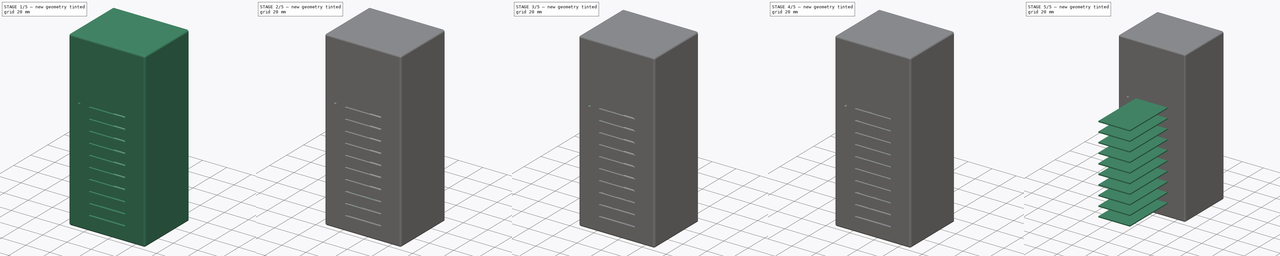
[diagram: build sequence overview — one tinted view per stage of 5, left to right]
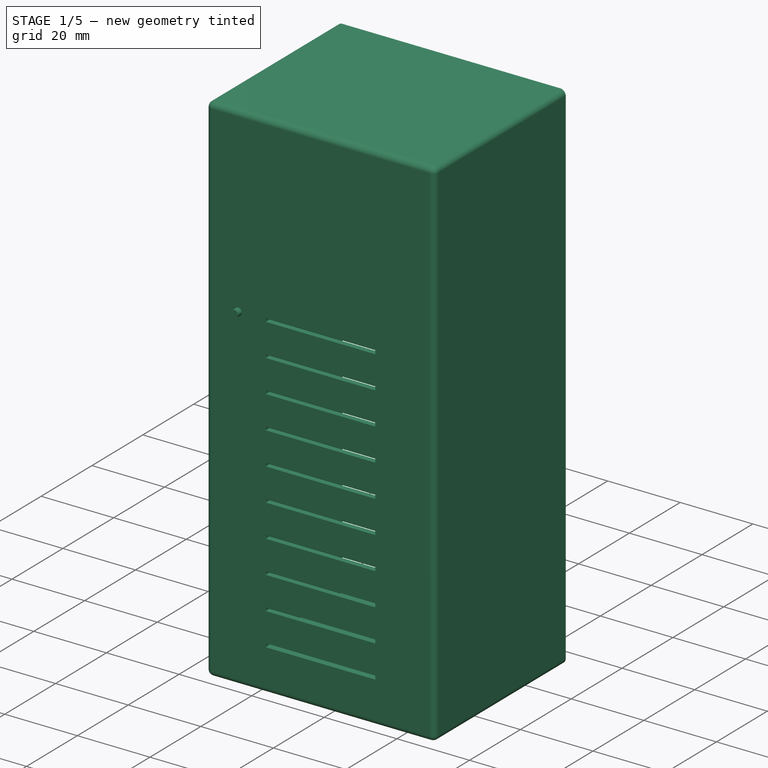
[diagram: stage 1 of 5 — iso view after this stage's code; geometry added in this stage tinted green]
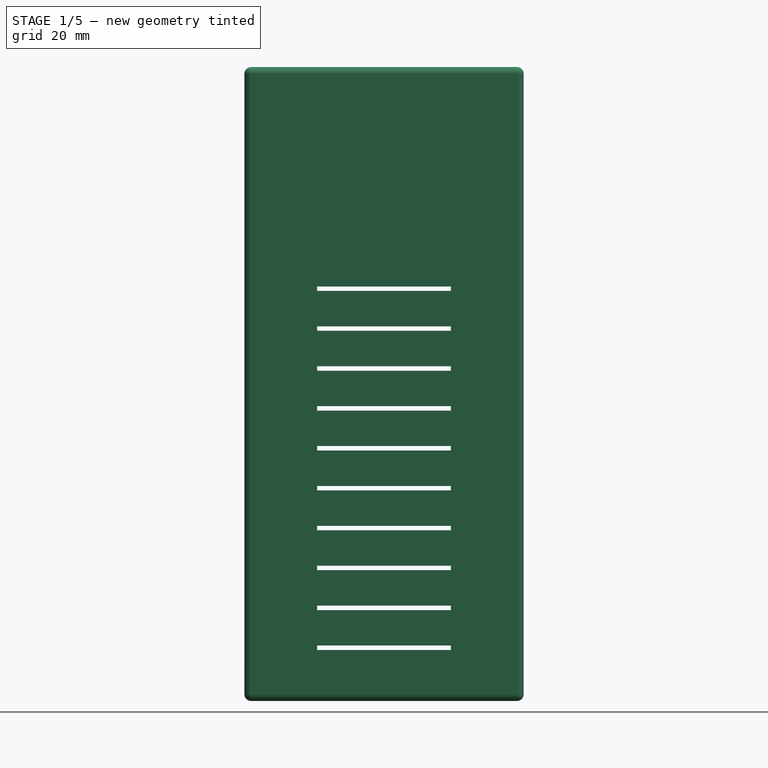
[diagram: stage 1 of 5 — front view after this stage's code; geometry added in this stage tinted green]
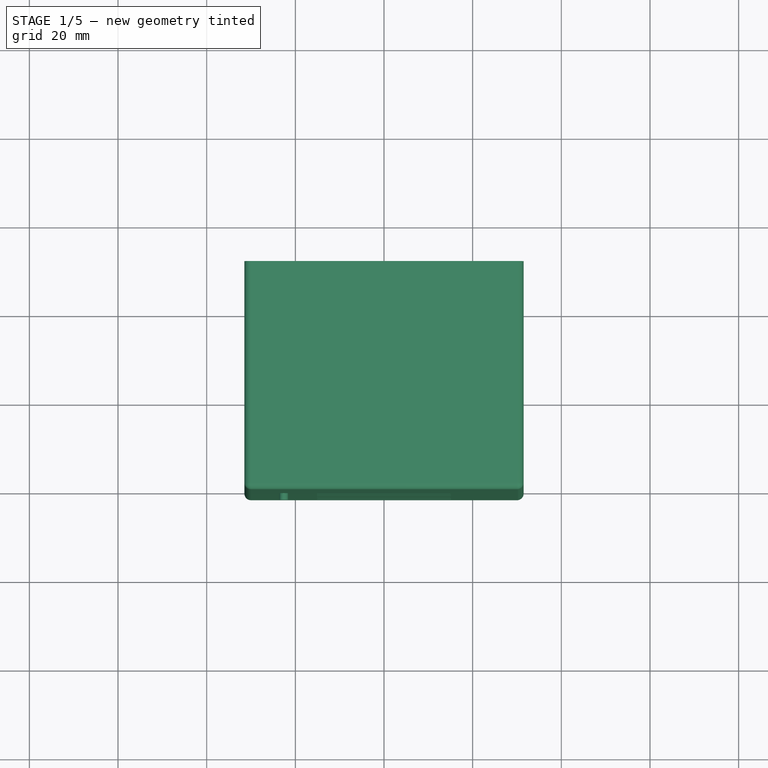
[diagram: stage 1 of 5 — top view after this stage's code; geometry added in this stage tinted green]
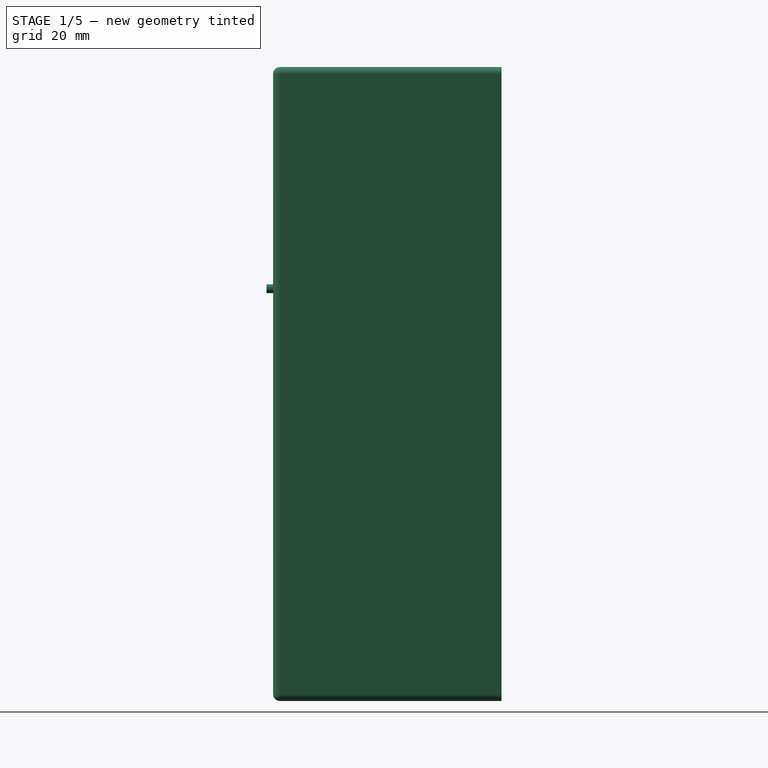
[diagram: stage 1 of 5 — right view after this stage's code; geometry added in this stage tinted green]
FCSTD DOCUMENT  (FreeCAD 0.16R6712 (Git))
Label: VU led directores
License: CreativeCommons Attribution-ShareAlike
LicenseURL: http://creativecommons.org/licenses/by-sa/4.0/
objects: Part::Feature×20, Part::MultiFuse×15, Sketcher::SketchObject×11, Part::FeaturePython×10, Part::MultiCommon×10, Part::Box×9, App::DocumentObjectGroup×8, PartDesign::Pocket×7, Part::Cut×7, Part::Cylinder×5, PartDesign::Pad×4, PartDesign::LinearPattern×3, App::Annotation×3, Part::Part2DObjectPython×3, Part::Chamfer×3, App::FeaturePython×2, Part::Thickness×1, Part::Compound×1, Part::Offset×1, Part::Fillet×1, +3 more types
note: 122 computed .brp shape members not serialized (recipe doc carries the construction recipe); baked Part::Feature solids carry a one-line shape summary decoded from their .brp

FEATURE [Part::Box] Box  label="Cube"
  Height = 140
  Length = 60
  Placement = pos=(-30,0,-10) rot=(0,0,1;0rad)
  Width = 50
FEATURE [Part::Thickness] Thickness
  Faces = -> Box [Face4]
  Intersection = false
  Join = 0
  Mode = 0
  SelfIntersection = false
  Value = 1.5
FEATURE [Sketcher::SketchObject] Sketch002
  Placement = pos=(0,0,0) rot=(0,0.707107,0.707107;3.14159rad)
  Support = -> Thickness [Face5]
  sketch-geometry (4):
    g0: LineSegment StartX=-15.1 StartY=1 StartZ=0 EndX=15.1 EndY=1 EndZ=0
    g1: LineSegment StartX=15.1 StartY=1 StartZ=0 EndX=15.1 EndY=0 EndZ=0
    g2: LineSegment StartX=15.1 StartY=0 StartZ=0 EndX=-15.1 EndY=0 EndZ=0
    g3: LineSegment StartX=-15.1 StartY=0 StartZ=0 EndX=-15.1 EndY=1 EndZ=0
  constraints (12):
    c: Coincident(g0,g1)
    c: Coincident(g1,g2)
    c: Coincident(g2,g3)
    c: Coincident(g3,g0)
    c: Horizontal(g0)
    c: Horizontal(g2)
    c: Vertical(g1)
    c: Vertical(g3)
    c: PointOnObject(g1,g-1)
    c: Symmetric(g2,g1,g-2)
    c: DistanceY(g1,g0) = 1
    c: DistanceX(g0,g0) = 30.2
FEATURE [PartDesign::Pocket] Pocket
  Length = 5
  Sketch = -> Sketch002
  Type = 0
FEATURE [PartDesign::LinearPattern] LinearPattern
  Direction = -> Sketch002 [V_Axis]
  Length = 81
  Occurrences = 10
  Originals = -> [Pocket]
FEATURE [Part::MultiCommon] Common
  Shapes = -> [Thickness,Pocket]
FEATURE [Part::MultiCommon] Common001
  Shapes = -> [Common,LinearPattern]
FEATURE [App::Annotation] Text002
  LabelText = 1
  Position = (70,0,35.9)
FEATURE [App::FeaturePython] Dimension  # Draft dimension (typed FeaturePython)
  Dimline = (-4.42051,55.6303,0)
  Direction = (0,0,0)
  Distance = 29.7
  End = (14.85,50,0)
  Normal = (0,0,1)
  Start = (-14.85,50,0)
FEATURE [App::FeaturePython] Dimension003  # Draft dimension (typed FeaturePython)
  Dimline = (19.9166,15.1512,0)
  Direction = (0,0,0)
  Distance = 100
  End = (14.85,-50,0)
  Normal = (0,0,1)
  Start = (14.85,50,0)
FEATURE [App::DocumentObjectGroup] Group003  label="DimensionXY"
  Group = -> [Dimension,Dimension003]
FEATURE [Part::Part2DObjectPython] Line  # Draft 2D object (typed FeaturePython)
  ChamferSize = 0
  Closed = false
  End = (14.85,5.9604e-08,0.999997)
  FilletRadius = 0
  Length = 63.7411
  MakeFace = true
  Points = (2) [(67.7546,2.17875e-06,36.5533),(14.85,5.96045e-08,0.999997)]
  Start = (67.7546,2.17875e-06,36.5533)
  Subdivisions = 0
FEATURE [App::DocumentObjectGroup] Group005  label="Descripcion"
  Group = -> [Text002,Line]
FEATURE [Part::Cylinder] Cylinder
  Angle = 360
  Height = 2.25
  Placement = pos=(-27.8,24.95,16.75) rot=(0,-1,0;1.5708rad)
  Radius = 2
FEATURE [Part::Cylinder] Cylinder002
  Angle = 360
  Height = 10
  Placement = pos=(-26.5,48,-6.6) rot=(1,0,0;1.5708rad)
  Radius = 1.9
FEATURE [Part::FeaturePython] Clone006003  label="Clone of Cylinder002"  # Draft clone (typed FeaturePython)
  Objects = -> [Cylinder002]
  Placement = pos=(26.5,48,-6.6) rot=(1,0,0;1.5708rad)
  Scale = (1,1,1)
FEATURE [Part::Feature] PolarPattern001  label="Inserto"
  Placement = pos=(-26.5,45,-6.6) rot=(-0.993131,-0.082739,-0.082739;1.57769rad)
  shape: bbox 4 x 3 x 4 mm, 102 faces (baked)
FEATURE [Part::Box] Box001  label="Cube001"
  Height = 1
  Length = 10
  Placement = pos=(20,0,59.5) rot=(0,0,1;0rad)
  Width = 5
FEATURE [Part::Chamfer] Chamfer
  Base = -> Box001
  Edges = 1 edges r=4.99: [Edge3]
FEATURE [Part::Box] Box002  label="Cube002"
  Height = 1
  Length = 10
  Placement = pos=(-30,0,59.5) rot=(0,0,1;0rad)
  Width = 5
FEATURE [Part::Chamfer] Chamfer001
  Base = -> Box002
  Edges = 1 edges r=4.99: [Edge7]
FEATURE [Part::Feature] PolarPattern002  label="Inserto001"
  Placement = pos=(26.5,45,-6.60001) rot=(-0.996079,-0.062558,-0.062558;1.57472rad)
  shape: bbox 4 x 3 x 4 mm, 102 faces (baked)
FEATURE [Part::Feature] PolarPattern003  label="Inserto002"
  Placement = pos=(-26.5,45,126.5) rot=(-0.963825,-0.18847,-0.18847;1.60764rad)
  shape: bbox 3.979 x 3 x 3.979 mm, 102 faces (baked)
FEATURE [Part::Feature] PolarPattern004  label="Inserto003"
  Placement = pos=(26.5,48,126.5) rot=(0.999836,-0.012822,0.012822;1.57096rad)
  shape: bbox 3.986 x 3 x 3.986 mm, 102 faces (baked)
FEATURE [Part::Box] Box003  label="Cube003"
  Height = 1
  Length = 3
  Placement = pos=(27,40,59.5) rot=(0,0,1;0rad)
  Width = 1
FEATURE [App::DocumentObjectGroup] Group008  label="3"
  Group = -> [Chamfer002,Group009]
FEATURE [Part::Feature] Chamfer002001  label="Bottom"
  shape: bbox 59.6 x 18 x 139.6 mm, 93 faces (baked)
FEATURE [Part::Cylinder] Cylinder004
  Angle = 360
  Height = 10
  Placement = pos=(-22.6184,7,81.5) rot=(1,0,0;1.5708rad)
  Radius = 1
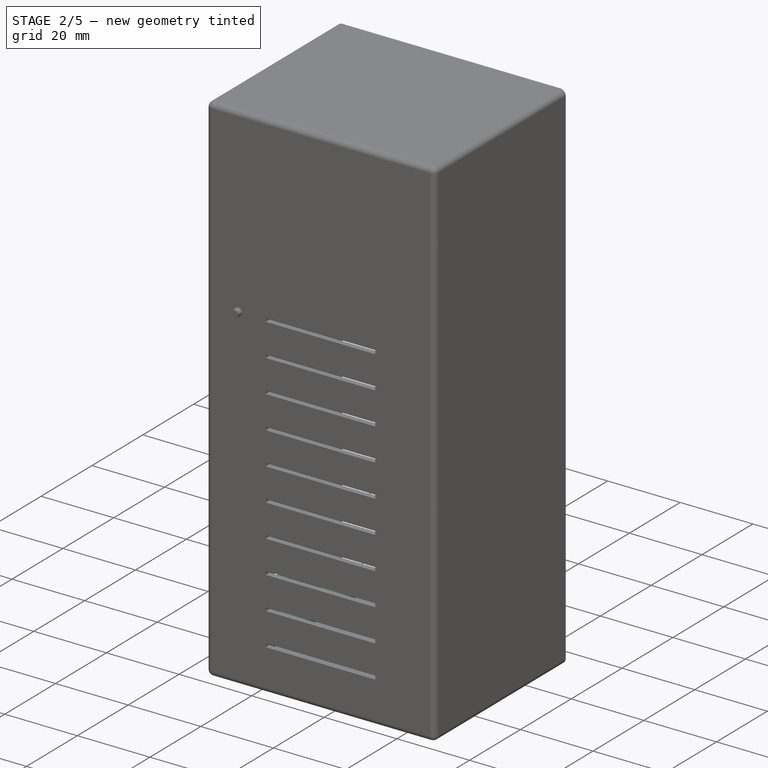
[diagram: stage 2 of 5 — iso view after this stage's code; geometry added in this stage tinted green]
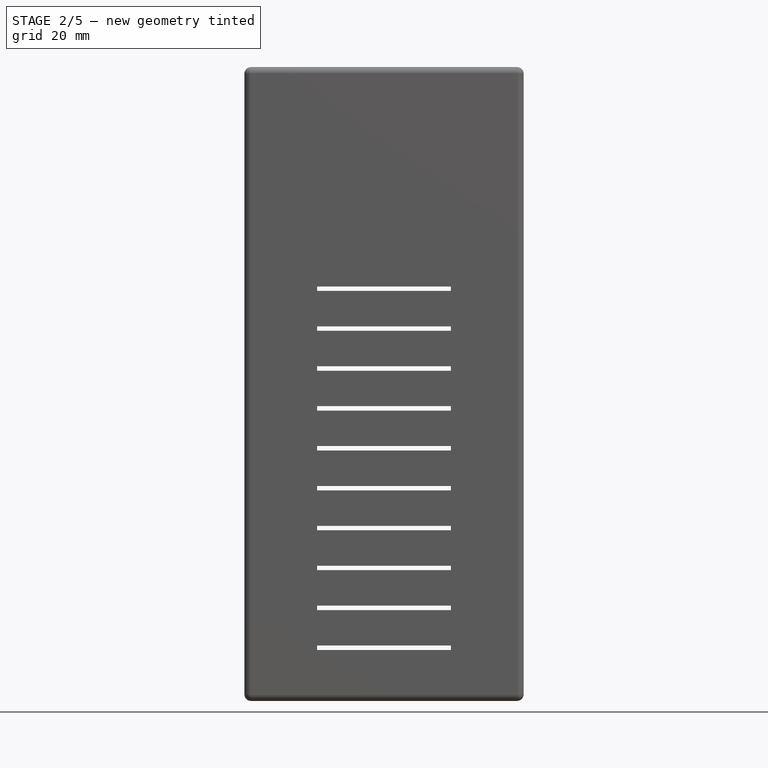
[diagram: stage 2 of 5 — front view after this stage's code; geometry added in this stage tinted green]
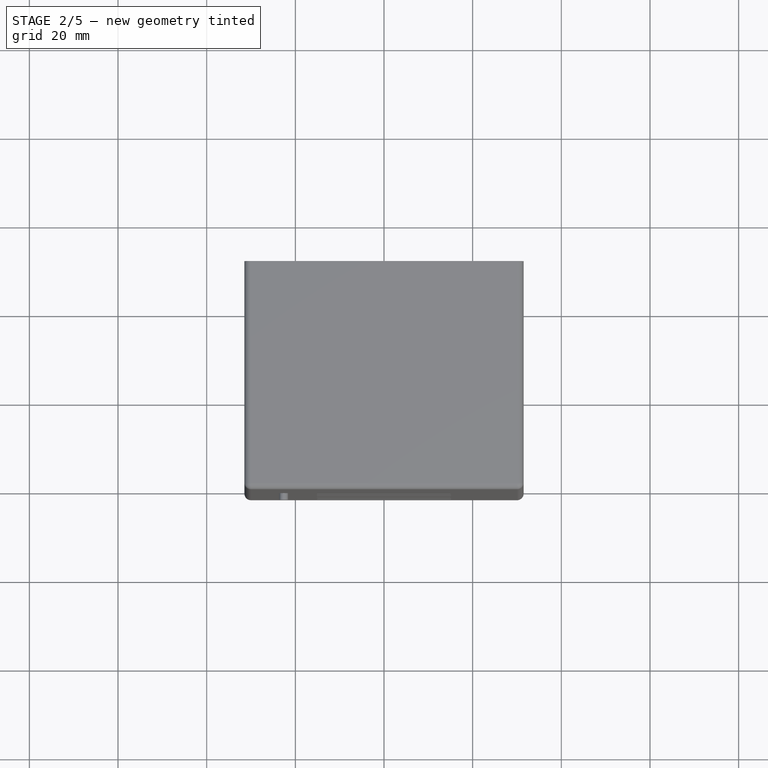
[diagram: stage 2 of 5 — top view after this stage's code; geometry added in this stage tinted green]
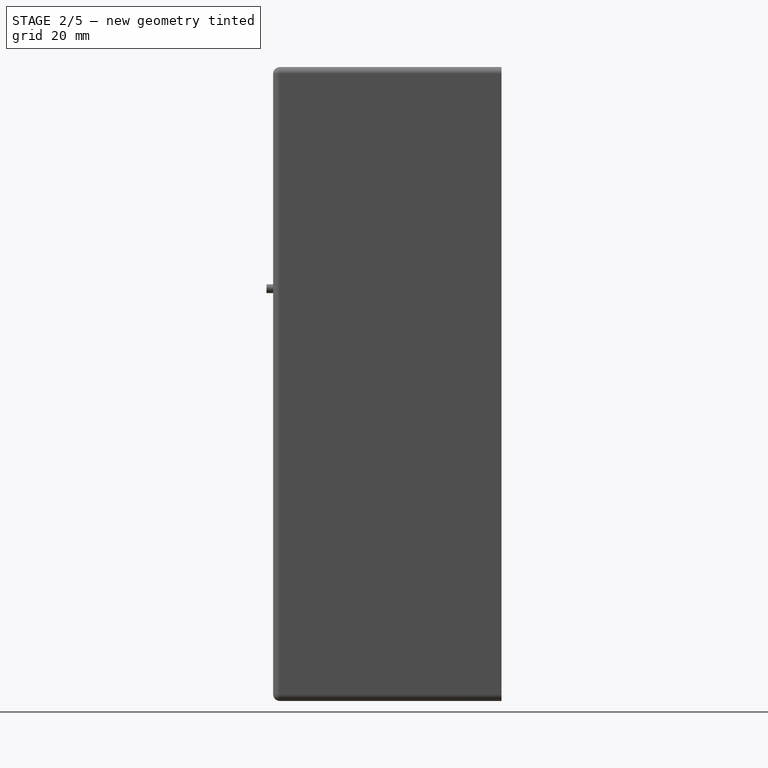
[diagram: stage 2 of 5 — right view after this stage's code; geometry added in this stage tinted green]
FEATURE [Sketcher::SketchObject] Sketch003
  ExternalGeometry = -> [Common001]
  Placement = pos=(0,0,0) rot=(0,0.707107,0.707107;3.14159rad)
  Support = -> Common001 [Face54]
  sketch-geometry (4):
    g0: Circle CenterX=-26.5 CenterY=126.5 CenterZ=0 NormalX=0 NormalY=0 NormalZ=1 Radius=3
    g1: Circle CenterX=26.5 CenterY=126.5 CenterZ=0 NormalX=0 NormalY=0 NormalZ=1 Radius=3
    g2: Circle CenterX=-26.5 CenterY=-6.6 CenterZ=0 NormalX=0 NormalY=0 NormalZ=1 Radius=3
    g3: Circle CenterX=26.5 CenterY=-6.6 CenterZ=0 NormalX=0 NormalY=0 NormalZ=1 Radius=3
  constraints (10):
    c: Equal(g0,g1)
    c: Equal(g1,g3)
    c: Equal(g3,g2)
    c: Radius(g1) = 3
    c: Symmetric(g0,g1,g-2)
    c: Symmetric(g2,g3,g-2)
    c: DistanceY(g3,g-1) = 6.6
    c: DistanceX(g-1,g3) = 26.5
    c: DistanceX(g-1,g1) = 26.5
    c: DistanceY(g-1,g1) = 126.5
FEATURE [PartDesign::Pad] Pad002
  Length = 48
  Length2 = 100
  Sketch = -> Sketch003
  Type = 0
FEATURE [Part::MultiFuse] Fusion
  Shapes = -> [Pad002,Common001]
FEATURE [Sketcher::SketchObject] Sketch004
  ExternalGeometry = -> [Fusion]
  Placement = pos=(-31.5,0,0) rot=(0.57735,-0.57735,-0.57735;2.0944rad)
  Support = -> Fusion [Face62]
  sketch-geometry (4):
    g0: LineSegment StartX=-26.65 StartY=9.5 StartZ=0 EndX=-23.35 EndY=9.5 EndZ=0
    g1: LineSegment StartX=-23.35 StartY=9.5 StartZ=0 EndX=-23.35 EndY=3 EndZ=0
    g2: LineSegment StartX=-23.35 StartY=3 StartZ=0 EndX=-26.65 EndY=3 EndZ=0
    g3: LineSegment StartX=-26.65 StartY=3 StartZ=0 EndX=-26.65 EndY=9.5 EndZ=0
  constraints (12):
    c: Coincident(g0,g1)
    c: Coincident(g1,g2)
    c: Coincident(g2,g3)
    c: Coincident(g3,g0)
    c: Horizontal(g0)
    c: Horizontal(g2)
    c: Vertical(g1)
    c: Vertical(g3)
    c: DistanceX(g-3,g2) = 23.35
    c: DistanceX(g0,g0) = 3.3
    c: DistanceY(g1,g1) = 6.5
    c: DistanceY(g-1,g1) = 3
FEATURE [PartDesign::Pocket] Pocket001
  Length = 5
  Sketch = -> Sketch004
  Type = 0
FEATURE [Part::MultiCommon] Common002002
  Shapes = -> [Fusion,Pocket001]
FEATURE [Part::Cylinder] Cylinder001
  Angle = 360
  Height = 2
  Placement = pos=(-26,24.95,16.75) rot=(0,-1,0;1.5708rad)
  Radius = 1
FEATURE [Part::FeaturePython] Clone  label="Clone of Cylinder"  # Draft clone (typed FeaturePython)
  Objects = -> [Cylinder]
  Placement = pos=(-27.8,24.95,1.75) rot=(0,-1,0;1.5708rad)
  Scale = (1,1,1)
FEATURE [Part::FeaturePython] Clone006002  label="Clone of Cylinder001"  # Draft clone (typed FeaturePython)
  Objects = -> [Cylinder001]
  Placement = pos=(-26,24.95,1.75) rot=(0,-1,0;1.5708rad)
  Scale = (1,1,1)
FEATURE [Part::MultiFuse] Fusion001
  Shapes = -> [Cylinder,Common002002]
FEATURE [Part::MultiFuse] Fusion002
  Shapes = -> [Clone,Fusion001]
FEATURE [Part::MultiFuse] Fusion003
  Shapes = -> [Cylinder001,Fusion002]
FEATURE [Part::MultiFuse] Fusion004
  Shapes = -> [Clone006002,Fusion003]
FEATURE [Part::Cut] Cut
  Base = -> Fusion004
  Tool = -> Cylinder002
FEATURE [Part::FeaturePython] Clone006004  label="Clone of Cylinder003"  # Draft clone (typed FeaturePython)
  Objects = -> [Cylinder002]
  Placement = pos=(-26.5,48,126.5) rot=(1,0,0;1.5708rad)
  Scale = (1,1,1)
FEATURE [Part::FeaturePython] Clone006005  label="Clone of Cylinder004"  # Draft clone (typed FeaturePython)
  Objects = -> [Cylinder002]
  Placement = pos=(26.5,48,126.5) rot=(1,0,0;1.5708rad)
  Scale = (1,1,1)
FEATURE [Part::Cut] Cut005002
  Base = -> Cut
  Tool = -> Clone006003
FEATURE [Part::Cut] Cut005003
  Base = -> Cut005002
  Tool = -> Clone006004
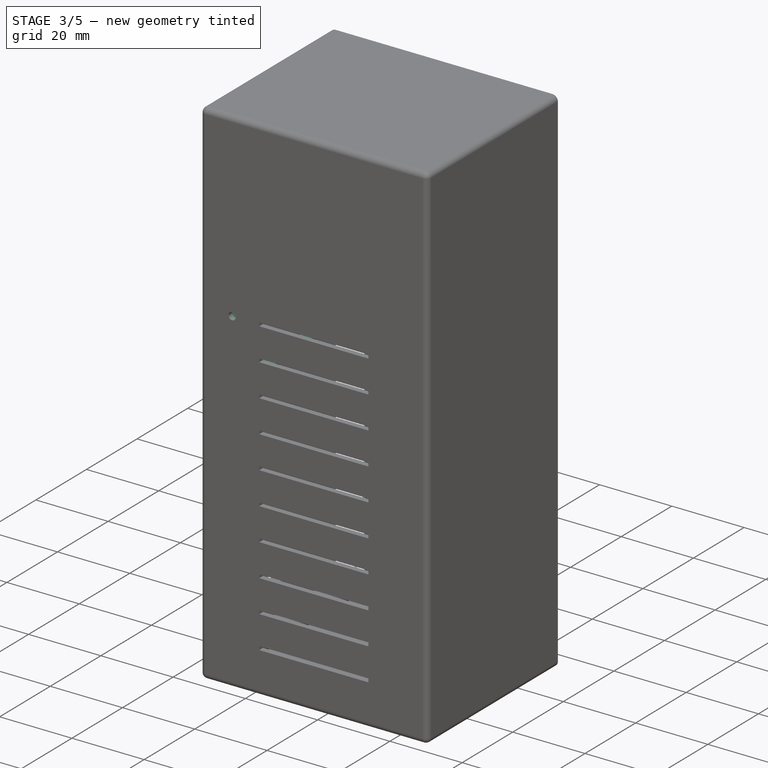
[diagram: stage 3 of 5 — iso view after this stage's code; geometry added in this stage tinted green]
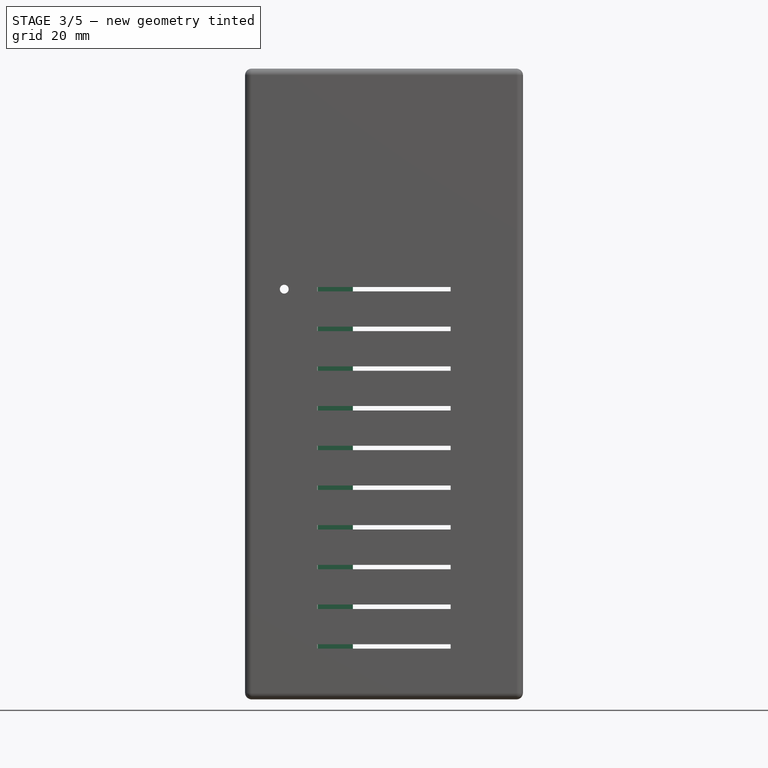
[diagram: stage 3 of 5 — front view after this stage's code; geometry added in this stage tinted green]
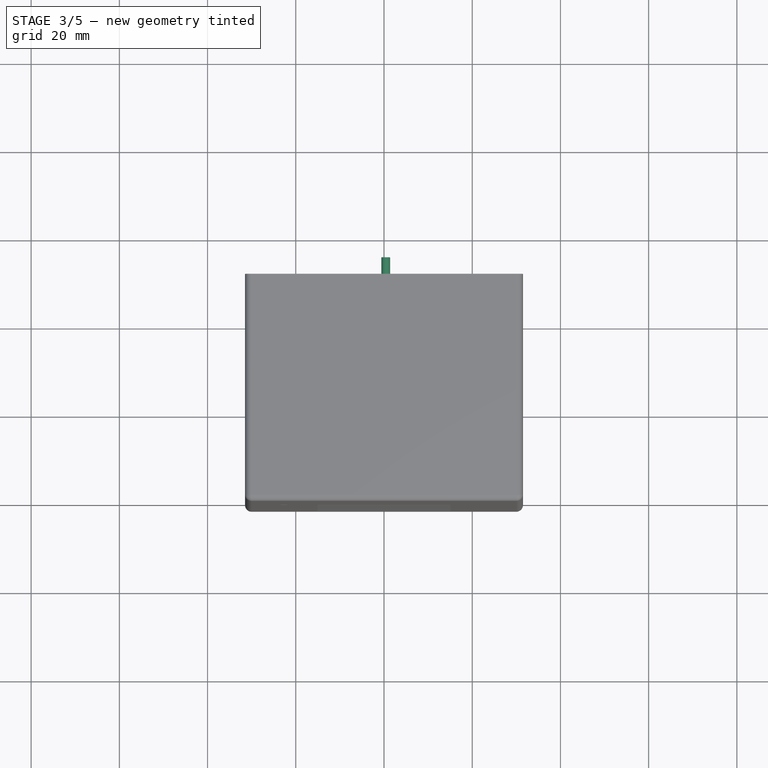
[diagram: stage 3 of 5 — top view after this stage's code; geometry added in this stage tinted green]
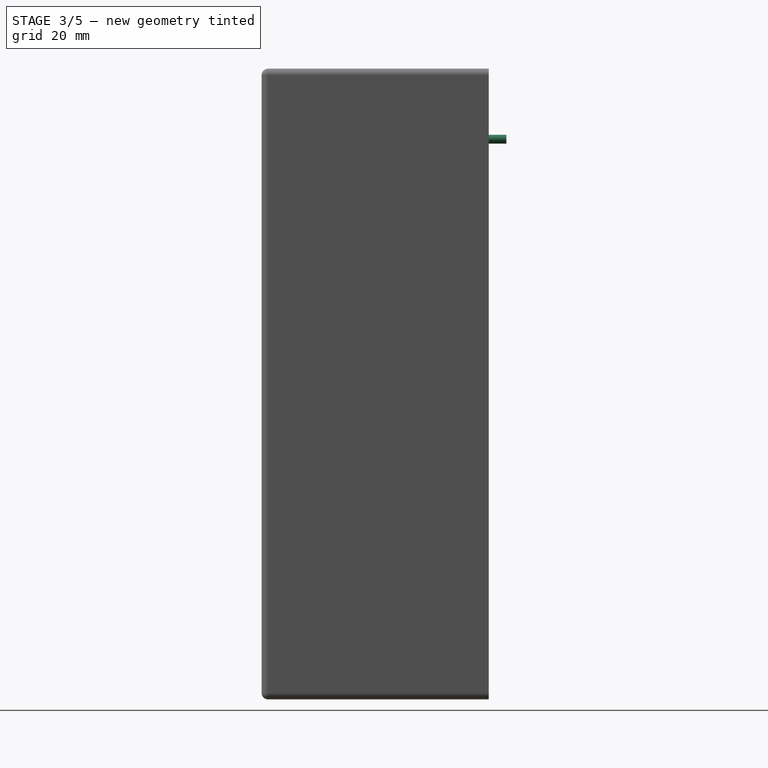
[diagram: stage 3 of 5 — right view after this stage's code; geometry added in this stage tinted green]
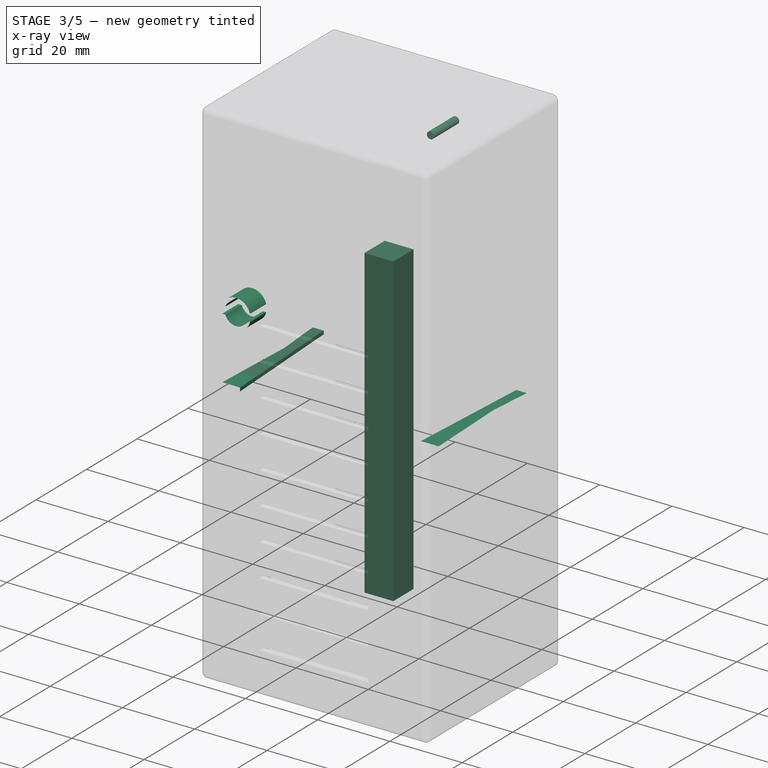
[diagram: stage 3 of 5 — x-ray composite at the iso view; earlier geometry ghosted, this stage's added geometry solid]
FEATURE [Part::Cut] Cut005004
  Base = -> Cut005003
  Tool = -> Clone006005
FEATURE [Part::MultiFuse] Fusion005
  Shapes = -> [Chamfer,Cut005004]
FEATURE [Part::MultiFuse] Fusion006
  Shapes = -> [Chamfer001,Fusion005]
FEATURE [Part::Box] Box004  label="Cube004"
  Height = 1
  Length = 3
  Placement = pos=(-30,40,59.5) rot=(0,0,1;0rad)
  Width = 1
FEATURE [Part::MultiFuse] Fusion007
  Shapes = -> [Box003,Fusion006]
FEATURE [Part::MultiFuse] Fusion008
  Shapes = -> [Box004,Fusion007]
FEATURE [Part::Feature] Solid
  shape: bbox 6.631 x 38.79 x 1.1 mm, 6 faces (baked)
FEATURE [Part::MultiFuse] Fusion009
  Shapes = -> [Fusion008,Solid]
FEATURE [Part::Feature] Solid001
  shape: bbox 6.631 x 38.79 x 1.1 mm, 6 faces (baked)
FEATURE [Part::MultiFuse] Fusion010
  Shapes = -> [Solid001,Fusion009]
FEATURE [Part::Box] Box008  label="Cube008"
  Height = 85
  Length = 8
  Placement = pos=(-15.05,40,-1.5) rot=(0,0,1;0rad)
  Width = 8
FEATURE [Part::Cylinder] Cylinder003
  Angle = 360
  Height = 10
  Placement = pos=(0.4,54,115.5) rot=(1,0,0;1.5708rad)
  Radius = 1
FEATURE [Part::Cut] Cut005007
  Base = -> Fusion010
  Tool = -> Cylinder004
FEATURE [Sketcher::SketchObject] Sketch009
  ExternalGeometry = -> [Cut005007]
  Placement = pos=(0,0,0) rot=(0,0.707107,0.707107;3.14159rad)
  Support = -> Cut005007 [Face8]
  sketch-geometry (2):
    g0: Circle CenterX=22.6184 CenterY=81.5 CenterZ=0 NormalX=0 NormalY=0 NormalZ=1 Radius=3.1
    g1: Circle CenterX=22.6184 CenterY=81.5 CenterZ=0 NormalX=0 NormalY=0 NormalZ=1 Radius=4
  constraints (4):
    c: Coincident(g0,g-3)
    c: Coincident(g1,g0)
    c: Radius(g0) = 3.1
    c: Radius(g1) = 4
FEATURE [PartDesign::Pad] Pad001003
  Length = 6.5
  Length2 = 100
  Sketch = -> Sketch009
  Type = 0
FEATURE [Part::MultiFuse] Fusion010005
  Shapes = -> [Pad001003,Cut005007]
FEATURE [Sketcher::SketchObject] Sketch010
  ExternalGeometry = -> [Fusion010005]
  Placement = pos=(0,6.5,0) rot=(0,0.707107,0.707107;3.14159rad)
  Support = -> Fusion010005 [Face1]
  sketch-geometry (5):
    g0: LineSegment StartX=16.6184 StartY=82.5 StartZ=0 EndX=28.6184 EndY=82.5 EndZ=0
    g1: LineSegment StartX=28.6184 StartY=82.5 StartZ=0 EndX=28.6184 EndY=80.5 EndZ=0
    g2: LineSegment StartX=28.6184 StartY=80.5 StartZ=0 EndX=16.6184 EndY=80.5 EndZ=0
    g3: LineSegment StartX=16.6184 StartY=80.5 StartZ=0 EndX=16.6184 EndY=82.5 EndZ=0
    g4: LineSegment [constr] StartX=26.6184 StartY=81.5 StartZ=0 EndX=18.6184 EndY=81.5 EndZ=0
  constraints (16):
    c: Coincident(g0,g1)
    c: Coincident(g1,g2)
    c: Coincident(g2,g3)
    c: Coincident(g3,g0)
    c: Horizontal(g0)
    c: Horizontal(g2)
    c: Vertical(g1)
    c: Vertical(g3)
    c: PointOnObject(g4,g-3)
    c: PointOnObject(g4,g-3)
    c: Horizontal(g4)
    c: Perpendicular(g-3,g4)
    c: DistanceX(g4,g0) = 2
    c: DistanceX(g0,g4) = 2
    c: DistanceY(g1,g1) = 2
    c: Symmetric(g0,g2,g4)
FEATURE [PartDesign::Pocket] Pocket006
  Length = 6.5
  Sketch = -> Sketch010
  Type = 0
FEATURE [Part::MultiCommon] Common002009
  Shapes = -> [Pocket006,Fusion010005]
FEATURE [App::DocumentObjectGroup] Group006  label="2"
  Group = -> [Group007,Common002009]
FEATURE [Part::Feature] Common002009001  label="Top"
  shape: bbox 63 x 51.5 x 143 mm, 125 faces (baked)
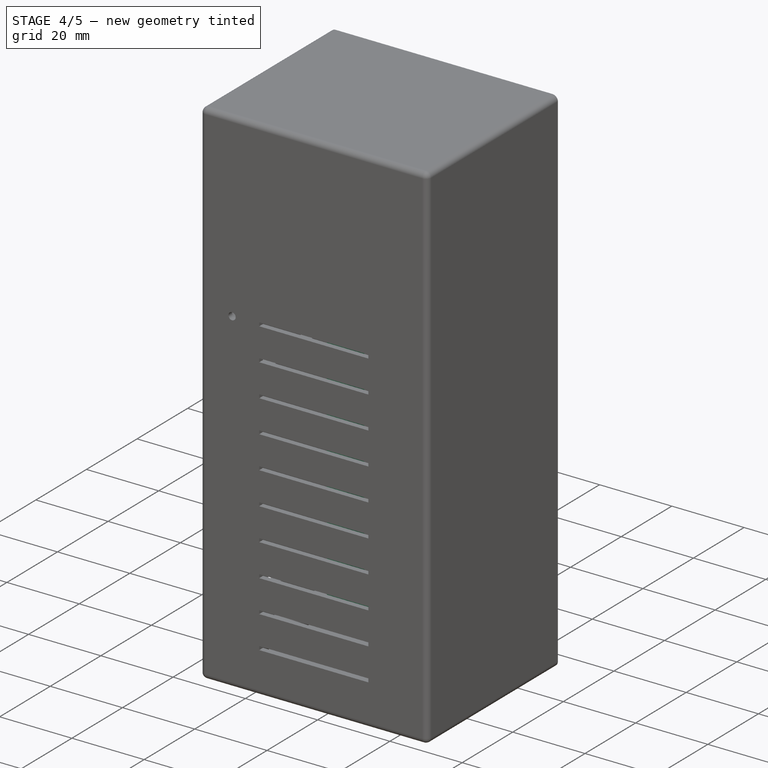
[diagram: stage 4 of 5 — iso view after this stage's code; geometry added in this stage tinted green]
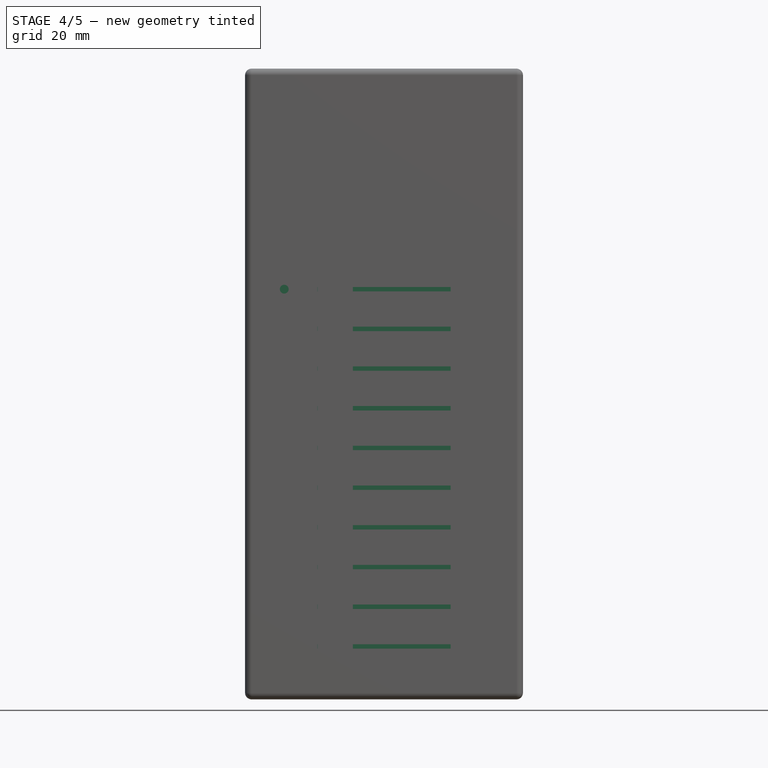
[diagram: stage 4 of 5 — front view after this stage's code; geometry added in this stage tinted green]
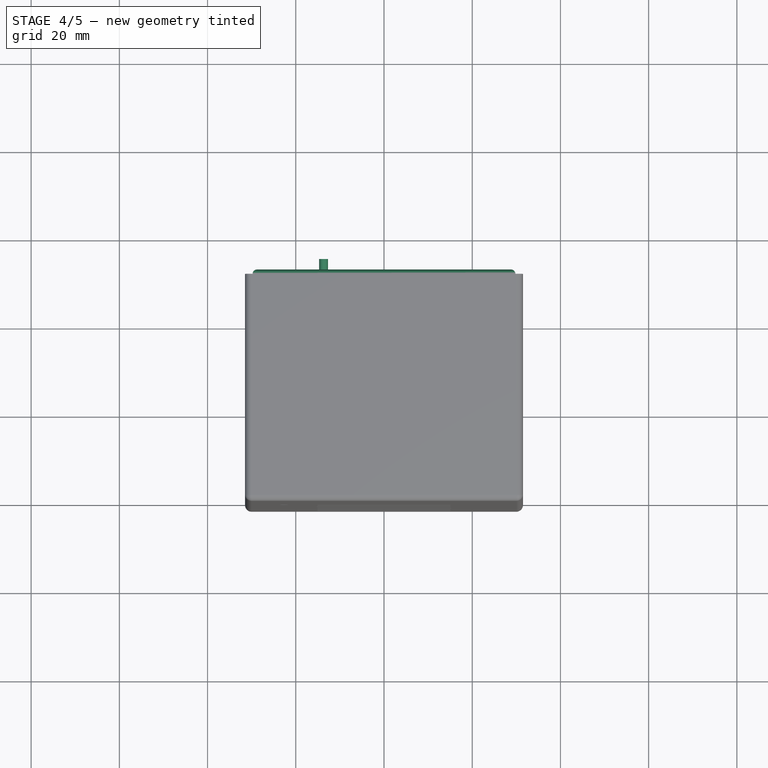
[diagram: stage 4 of 5 — top view after this stage's code; geometry added in this stage tinted green]
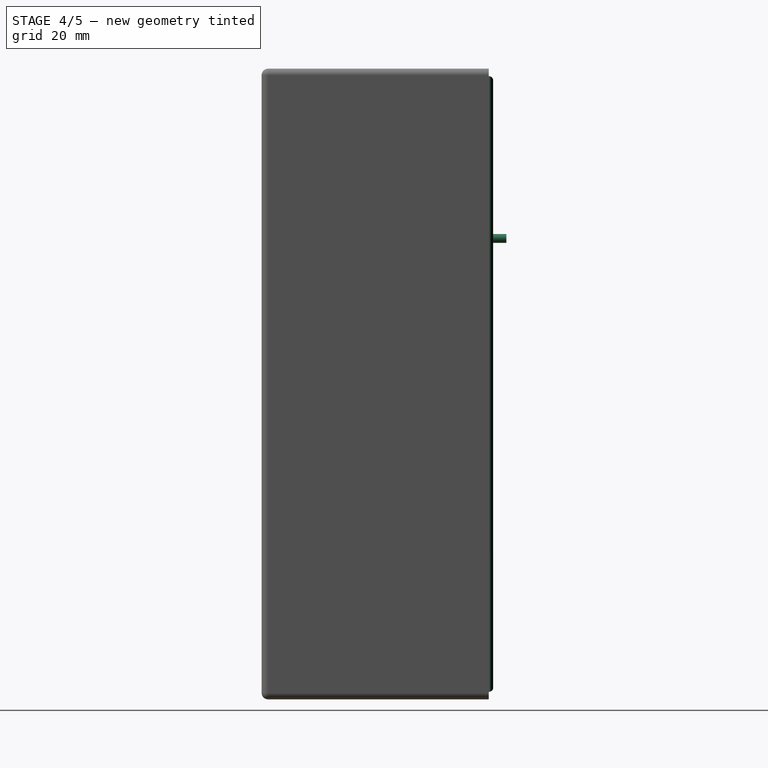
[diagram: stage 4 of 5 — right view after this stage's code; geometry added in this stage tinted green]
FEATURE [App::Annotation] Text003
  LabelText = 2
  Position = (68.961,0,74.7925)
FEATURE [Part::Part2DObjectPython] Line001  # Draft 2D object (typed FeaturePython)
  ChamferSize = 0
  Closed = false
  End = (30,0,60)
  FilletRadius = 0
  Length = 39.4287
  MakeFace = true
  Points = (2) [(66.3709,0,75.2242),(30,0,60)]
  Start = (66.3709,0,75.2242)
  Subdivisions = 0
FEATURE [App::DocumentObjectGroup] Group007  label="Description"
  Group = -> [Text003,Line001]
FEATURE [Part::Box] Box005  label="Cube005"
  Height = 140
  Length = 60
  Placement = pos=(-30,74,-10) rot=(0,0,1;0rad)
  Width = 3.4
FEATURE [Part::Offset] Offset
  Fill = false
  Intersection = false
  Join = 0
  Mode = 0
  SelfIntersection = false
  Source = -> Box005
  Value = -0.2
FEATURE [Part::Fillet] Fillet
  Base = -> Offset
  Edges = 4 edges r=1: [Edge4,Edge8,Edge9,Edge10]
FEATURE [Sketcher::SketchObject] Sketch005
  ExternalGeometry = -> [Fillet]
  Placement = pos=(0,77.2,0) rot=(0,0.707107,0.707107;3.14159rad)
  Support = -> Fillet [Face8]
  sketch-geometry (4):
    g0: Circle CenterX=-26.5 CenterY=126.55 CenterZ=0 NormalX=0 NormalY=0 NormalZ=1 Radius=1.5
    g1: Circle CenterX=26.5 CenterY=126.55 CenterZ=0 NormalX=0 NormalY=0 NormalZ=1 Radius=1.5
    g2: Circle CenterX=-26.5 CenterY=-6.55 CenterZ=0 NormalX=0 NormalY=0 NormalZ=1 Radius=1.5
    g3: Circle CenterX=26.5 CenterY=-6.55 CenterZ=0 NormalX=0 NormalY=0 NormalZ=1 Radius=1.5
  constraints (10):
    c: Equal(g1,g0)
    c: Equal(g0,g2)
    c: Equal(g2,g3)
    c: Radius(g1) = 1.5
    c: DistanceY(g3,g1) = 133.1
    c: Symmetric(g0,g1,g-2)
    c: Symmetric(g2,g3,g-2)
    c: DistanceX(g-1,g1) = 26.5
    c: DistanceX(g-1,g3) = 26.5
    c: DistanceY(g1,g-4) = 2.25
FEATURE [PartDesign::Pocket] Pocket002
  Length = 5
  Sketch = -> Sketch005
  Type = 0
FEATURE [Part::MultiCommon] Common002003
  Placement = pos=(7.7e-11,-26.2,0) rot=(0,0,1;0rad)
  Shapes = -> [Fillet,Pocket002]
FEATURE [Part::Box] Box006  label="Cube006"
  Height = 85
  Length = 5.5
  Placement = pos=(15.05,33,-1.5) rot=(0,0,1;0rad)
  Width = 15
FEATURE [Part::Box] Box007  label="Cube007"
  Height = 85
  Length = 5.5
  Placement = pos=(-20.55,33,-1.5) rot=(0,0,1;0rad)
  Width = 15
FEATURE [Part::MultiFuse] Fusion010002
  Shapes = -> [Box006,Common002003]
FEATURE [Part::MultiFuse] Fusion010003
  Shapes = -> [Box007,Fusion010002]
FEATURE [Sketcher::SketchObject] Sketch006
  Placement = pos=(20.55,0,0) rot=(0.57735,0.57735,0.57735;2.0944rad)
  Support = -> Fusion010003 [Face13]
  sketch-geometry (1):
    g0: Circle CenterX=40 CenterY=0.5 CenterZ=0 NormalX=0 NormalY=0 NormalZ=1 Radius=1.5
  constraints (3):
    c: Radius(g0) = 1.5
    c: DistanceY(g-1,g0) = 0.5
    c: DistanceX(g-1,g0) = 40
FEATURE [PartDesign::Pocket] Pocket003
  Length = 5.5
  Sketch = -> Sketch006
  Type = 0
FEATURE [PartDesign::LinearPattern] LinearPattern001
  Direction = -> Sketch006 [V_Axis]
  Length = 81
  Occurrences = 10
  Originals = -> [Pocket003]
FEATURE [Part::MultiCommon] Common002004
  Shapes = -> [Fusion010003,Pocket003]
FEATURE [Part::MultiCommon] Common002005
  Shapes = -> [Common002004,LinearPattern001]
FEATURE [Part::MultiFuse] Fusion010004
  Shapes = -> [Box008,Common002005]
FEATURE [Part::FeaturePython] Clone006009  label="Clone of Cylinder005"  # Draft clone (typed FeaturePython)
  Objects = -> [Cylinder003]
  Placement = pos=(-13.7,54,93) rot=(1,0,0;1.5708rad)
  Scale = (1,1,1)
FEATURE [Part::Cut] Cut005005
  Base = -> Fusion010004
  Tool = -> Cylinder003
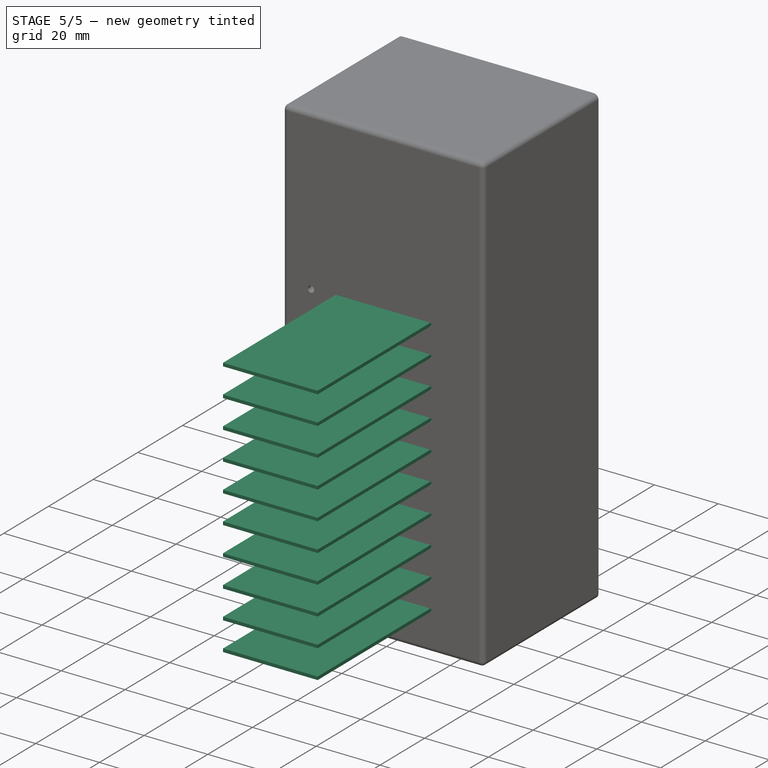
[diagram: stage 5 of 5 — iso view after this stage's code; geometry added in this stage tinted green]
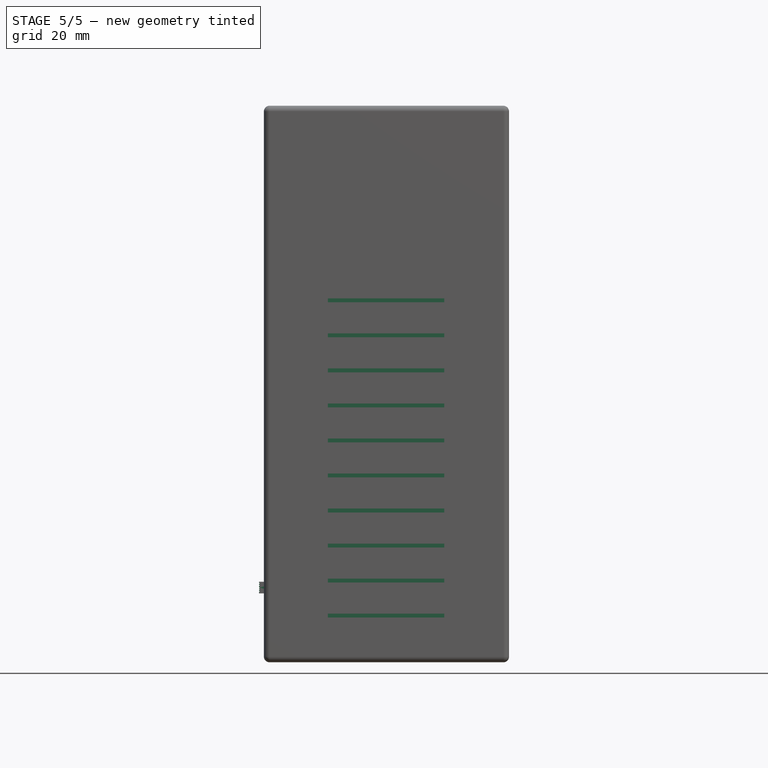
[diagram: stage 5 of 5 — front view after this stage's code; geometry added in this stage tinted green]
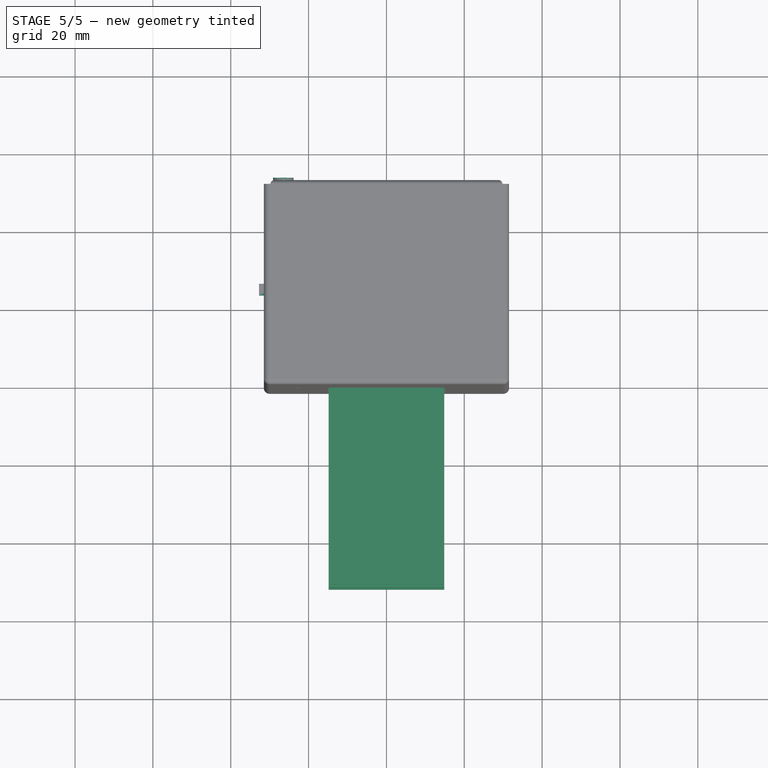
[diagram: stage 5 of 5 — top view after this stage's code; geometry added in this stage tinted green]
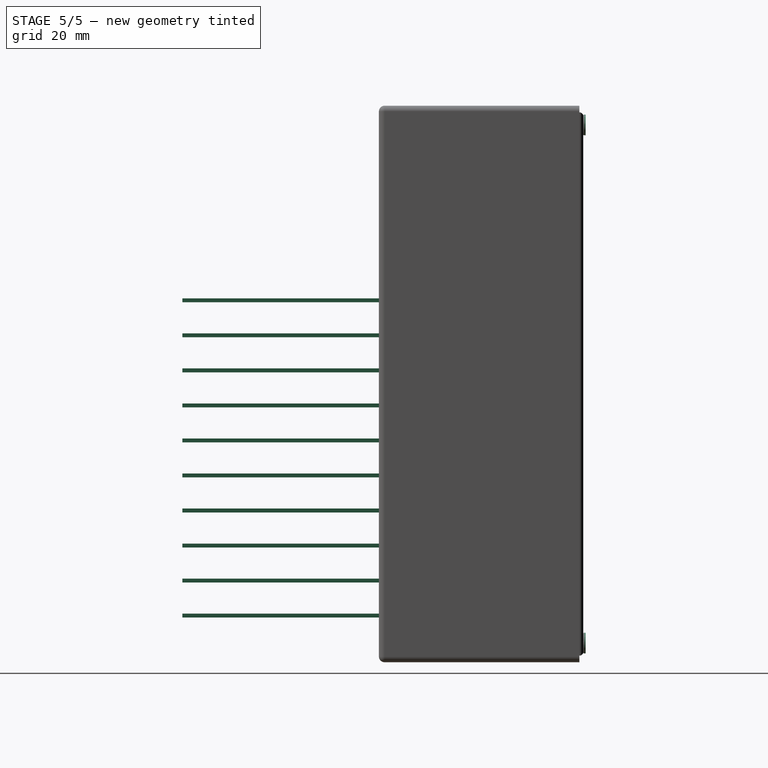
[diagram: stage 5 of 5 — right view after this stage's code; geometry added in this stage tinted green]
FEATURE [Sketcher::SketchObject] Sketch
  sketch-geometry (4):
    g0: LineSegment StartX=-14.85 StartY=50 StartZ=0 EndX=14.85 EndY=50 EndZ=0
    g1: LineSegment StartX=14.85 StartY=50 StartZ=0 EndX=14.85 EndY=-50 EndZ=0
    g2: LineSegment StartX=14.85 StartY=-50 StartZ=0 EndX=-14.85 EndY=-50 EndZ=0
    g3: LineSegment StartX=-14.85 StartY=-50 StartZ=0 EndX=-14.85 EndY=50 EndZ=0
  constraints (11):
    c: Coincident(g0,g1)
    c: Coincident(g1,g2)
    c: Coincident(g2,g3)
    c: Coincident(g3,g0)
    c: Horizontal(g0)
    c: Horizontal(g2)
    c: Vertical(g1)
    c: Vertical(g3)
    c: Symmetric(g0,g1,g-1)
    c: DistanceX(g0,g0) = 29.7
    c: DistanceY(g1,g1) = 100
FEATURE [PartDesign::Pad] Pad
  Length = 1
  Length2 = 100
  Sketch = -> Sketch
  Type = 0
FEATURE [Part::FeaturePython] Array  # Draft array (typed FeaturePython)
  Angle = 360
  ArrayType = 0
  Axis = (0,0,1)
  Base = -> Pad
  Center = (0,0,0)
  Fuse = false
  IntervalAxis = (0,0,0)
  IntervalX = (1,0,0)
  IntervalY = (0,1,0)
  IntervalZ = (0,0,9)
  NumberPolar = 10
  NumberX = 1
  NumberY = 1
  NumberZ = 10
  Placement = pos=(0,-2,0) rot=(0,0,1;0rad)
FEATURE [App::DocumentObjectGroup] Group002  label="Directors"
  Group = -> [Array]
FEATURE [Sketcher::SketchObject] Sketch001
  Placement = pos=(0,1,104) rot=(1,0,0;1.5708rad)
  sketch-geometry (4):
    g0: LineSegment StartX=-28.575 StartY=14.351 StartZ=0 EndX=28.575 EndY=14.351 EndZ=0
    g1: LineSegment StartX=28.575 StartY=14.351 StartZ=0 EndX=28.575 EndY=-14.351 EndZ=0
    g2: LineSegment StartX=28.575 StartY=-14.351 StartZ=0 EndX=-28.575 EndY=-14.351 EndZ=0
    g3: LineSegment StartX=-28.575 StartY=-14.351 StartZ=0 EndX=-28.575 EndY=14.351 EndZ=0
  constraints (11):
    c: Coincident(g0,g1)
    c: Coincident(g1,g2)
    c: Coincident(g2,g3)
    c: Coincident(g3,g0)
    c: Horizontal(g0)
    c: Horizontal(g2)
    c: Vertical(g1)
    c: Vertical(g3)
    c: Symmetric(g0,g1,g-1)
    c: DistanceX(g0,g0) = 57.15
    c: DistanceY(g1,g1) = 28.702
FEATURE [PartDesign::Pad] Pad001  label="PCB"
  Length = 1
  Length2 = 100
  Placement = pos=(0,1,104) rot=(1,0,0;1.5708rad)
  Sketch = -> Sketch001
  Type = 0
FEATURE [Part::Feature] Fillet001  label="Plegado001"
  shape: bbox 19.5 x 5.6 x 5.5 mm, 60 faces (baked)
FEATURE [Part::Feature] Common002001  label="Baquelita001"
  Placement = pos=(-5.3,-5.6,-5) rot=(0,0,1;0rad)
  shape: bbox 10.6 x 5.6 x 1 mm, 34 faces (baked)
FEATURE [Part::Feature] Cut005001  label="Mando001"
  shape: bbox 6.5 x 4.2 x 8.5 mm, 30 faces (baked)
FEATURE [Part::Feature] Clone005001  label="PIN_004"
  Placement = pos=(2.8,-2.65,0) rot=(1,0,0;1.5708rad)
  shape: bbox 1.5 x 0.3 x 4.5 mm, 10 faces (baked)
FEATURE [Part::Feature] Pad001001  label="PIN_005"
  Placement = pos=(0,-2.65,0) rot=(1,0,0;1.5708rad)
  shape: bbox 1.5 x 0.3 x 4.5 mm, 10 faces (baked)
FEATURE [Part::Feature] Clone006001  label="PIN_006"
  Placement = pos=(-2.8,-2.65,0) rot=(1,0,0;1.5708rad)
  shape: bbox 1.5 x 0.3 x 4.5 mm, 10 faces (baked)
FEATURE [Part::Compound] Compound  label="Slide switch"
  Links = -> [Fillet001,Common002001,Cut005001,Clone005001,Pad001001,Clone006001]
  Placement = pos=(-27.75,27.75,9.25) rot=(0,-1,0;1.5708rad)
FEATURE [Part::Feature] ISO7046_M3x8_
  Placement = pos=(26.5,51.6157,126.55) rot=(-1,0,0;1.5708rad)
  shape: bbox 5.3 x 8 x 5.3 mm, 28 faces (baked)
FEATURE [Part::FeaturePython] Clone006006  label="Clone of ISO7046_M3x8_"  # Draft clone (typed FeaturePython)
  Objects = -> [ISO7046_M3x8_]
  Placement = pos=(26.5,51.6157,-6.55) rot=(-1,0,0;1.5708rad)
  Scale = (1,1,1)
FEATURE [Part::FeaturePython] Clone006007  label="Clone of ISO7046_M3x8_001"  # Draft clone (typed FeaturePython)
  Objects = -> [ISO7046_M3x8_]
  Placement = pos=(-26.5,51.6157,126.55) rot=(-1,0,0;1.5708rad)
  Scale = (1,1,1)
FEATURE [Part::FeaturePython] Clone006008  label="Clone of ISO7046_M3x8_002"  # Draft clone (typed FeaturePython)
  Objects = -> [ISO7046_M3x8_]
  Placement = pos=(-26.5,51.6157,-6.55) rot=(-1,0,0;1.5708rad)
  Scale = (1,1,1)
FEATURE [Part::Cut] Cut005006
  Base = -> Cut005005
  Tool = -> Clone006009
FEATURE [Sketcher::SketchObject] Sketch007
  ExternalGeometry = -> [Cut005006]
  Placement = pos=(0,51,0) rot=(0,0.707107,0.707107;3.14159rad)
  Support = -> Cut005006 [Face27]
  sketch-geometry (2):
    g0: Circle CenterX=-0.4 CenterY=115.5 CenterZ=0 NormalX=0 NormalY=0 NormalZ=1 Radius=2.6
    g1: Circle CenterX=13.7 CenterY=93 CenterZ=0 NormalX=0 NormalY=0 NormalZ=1 Radius=2.6
  constraints (4):
    c: Coincident(g0,g-3)
    c: Coincident(g1,g-4)
    c: Equal(g0,g1)
    c: Radius(g0) = 2.6
FEATURE [PartDesign::Pocket] Pocket004
  Length = 2
  Sketch = -> Sketch007
  Type = 0
FEATURE [Part::MultiCommon] Common002006
  Shapes = -> [Cut005006,Pocket004]
FEATURE [Sketcher::SketchObject] Sketch008
  ExternalGeometry = -> [Common002006]
  Placement = pos=(0,40,0) rot=(1,0,0;1.5708rad)
  Support = -> Common002006 [Face8]
  sketch-geometry (4):
    g0: LineSegment StartX=-15.05 StartY=1 StartZ=0 EndX=-7.05 EndY=1 EndZ=0
    g1: LineSegment StartX=-7.05 StartY=1 StartZ=0 EndX=-7.05 EndY=0 EndZ=0
    g2: LineSegment StartX=-7.05 StartY=0 StartZ=0 EndX=-15.05 EndY=0 EndZ=0
    g3: LineSegment StartX=-15.05 StartY=0 StartZ=0 EndX=-15.05 EndY=1 EndZ=0
  constraints (12):
    c: Coincident(g0,g1)
    c: Coincident(g1,g2)
    c: Coincident(g2,g3)
    c: Coincident(g3,g0)
    c: Horizontal(g0)
    c: Horizontal(g2)
    c: Vertical(g1)
    c: PointOnObject(g1,g-1)
    c: PointOnObject(g0,g-3)
    c: DistanceX(g0,g0) = 8
    c: Vertical(g3)
    c: DistanceY(g1,g0) = 1
FEATURE [PartDesign::Pocket] Pocket005
  Length = 8
  Sketch = -> Sketch008
  Type = 0
FEATURE [PartDesign::LinearPattern] LinearPattern002
  Direction = -> Sketch008 [V_Axis]
  Length = 81
  Occurrences = 10
  Originals = -> [Pocket005]
FEATURE [Part::MultiCommon] Common002007
  Shapes = -> [Common002006,Pocket005]
FEATURE [Part::MultiCommon] Common002008
  Shapes = -> [Common002007,LinearPattern002]
FEATURE [App::Annotation] Text004
  LabelText = 3
  Position = (68.96,51,4.71)
FEATURE [Part::Part2DObjectPython] Line002  # Draft 2D object (typed FeaturePython)
  ChamferSize = 0
  Closed = false
  End = (31.9967,51,3.3076)
  FilletRadius = 0
  Length = 35.5627
  MakeFace = true
  Points = (2) [(67.5161,51,5.06377),(31.9967,51,3.3076)]
  Start = (67.5161,51,5.06377)
  Subdivisions = 0
FEATURE [App::DocumentObjectGroup] Group009  label="Description001"
  Group = -> [Text004,Line002]
FEATURE [Part::Feature] Array001  label="Directors001"
  Placement = pos=(0,-2,0) rot=(0,0,1;0rad)
  shape: bbox 29.7 x 100 x 82 mm, 60 faces, 10 solids (baked)
FEATURE [Part::Feature] Pad001002  label="PCB001"
  Placement = pos=(0,1,104) rot=(1,0,0;1.5708rad)
  shape: bbox 57.15 x 1 x 28.7 mm, 6 faces (baked)
FEATURE [Part::Feature] ISO7048_M2_5x5_
  Placement = pos=(-13.7,49,93) rot=(-1,0,0;1.5708rad)
  shape: bbox 4.5 x 6.8 x 4.5 mm, 29 faces (baked)
FEATURE [Part::Feature] ISO7048_M2_5x5_001
  Placement = pos=(0.3,49,116.5) rot=(-1,0,0;1.5708rad)
  shape: bbox 4.5 x 6.8 x 4.5 mm, 29 faces (baked)
FEATURE [Drawing::FeatureViewPart] Ortho  label="Ortho_0_0"
  Direction = (0,0,1)
  HiddenWidth = 0.15
  LineWidth = 0.8
  Rotation = 0
  Scale = 1.5
  ShowHiddenLines = false
  ShowSmoothLines = false
  Source = -> Pad
  Tolerance = 0.05
  ViewResult = <g id="Ortho_0_0"\n   transform="rotate(0,110,118.5) translate(110,118.5) scale(1.5,1.5)"\n  >\n<g   stroke="rgb(0, 0, 0)"\n   stroke-width="0.533333"\n   stroke-linecap="butt"\n   stroke-linejoin="miter"\n   fill="none"\n   transform="scale(1,-1)"\n  >\n<path id= "1" d=" M -14.85 50 L 14.85 50 " />\n<path id= "2" d=" M 14.85 50 L 14.85 -50 " />\n<path id= "3" d=" M 14.85 -50 L -14.85 -50 " />\n<path id= "4" d=" M -14.85 -50 L -14.85 50 " />\n</g>\n</g>
  Visible = true
  X = 110
  Y = 118.5
FEATURE [Drawing::FeatureViewPython] ViewGroup003  # drawing view (typed FeaturePython)
  Direction = (0,0,0)
  FillStyle = 0
  FontSize = 12
  LineStyle = 0
  LineWidth = 0.2
  Rotation = 0
  Scale = 1.5
  Source = -> Group003
  ViewResult = <blob: 2150 chars omitted>
  Visible = true
  X = 110
  Y = 118.5
FEATURE [Drawing::FeaturePage] Page
  EditableTexts = Marcelo Vioque | VUMETRO LED | Cantidad: 10 | Material: PLEXIGLAS | Dimensiones: 297X210X1 MM | A4 | X / Y | 1:1 | 1 | DN | 19/05/2019 | REV A
  Group = -> [Ortho,ViewGroup003]
FEATURE [App::DocumentObjectGroup] Group  label="1"
  Group = -> [Group002,Group003,Group005,Page]
FEATURE [Part::Feature] Compound001  label="Battery-holder"
  Placement = pos=(-27.3,48,119.5) rot=(0.57735,-0.57735,-0.57735;2.0944rad)
  shape: bbox 54.6 x 21 x 30.5 mm, 111 faces, 3 solids (baked)
FEATURE [Part::Chamfer] Chamfer002
  Base = -> Common002008
  Edges = 11 edges r=5: [Edge104,Edge106,Edge118,Edge123,Edge131,Edge139,Edge147,Edge155,Edge163,Edge171,Edge179]
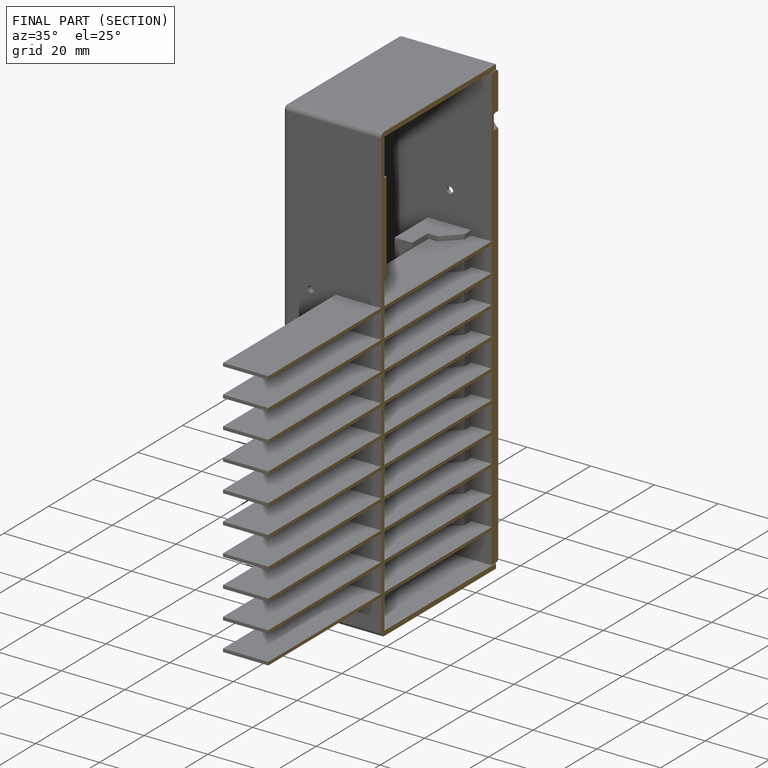
[diagram: finished part — half-section view (interior)]
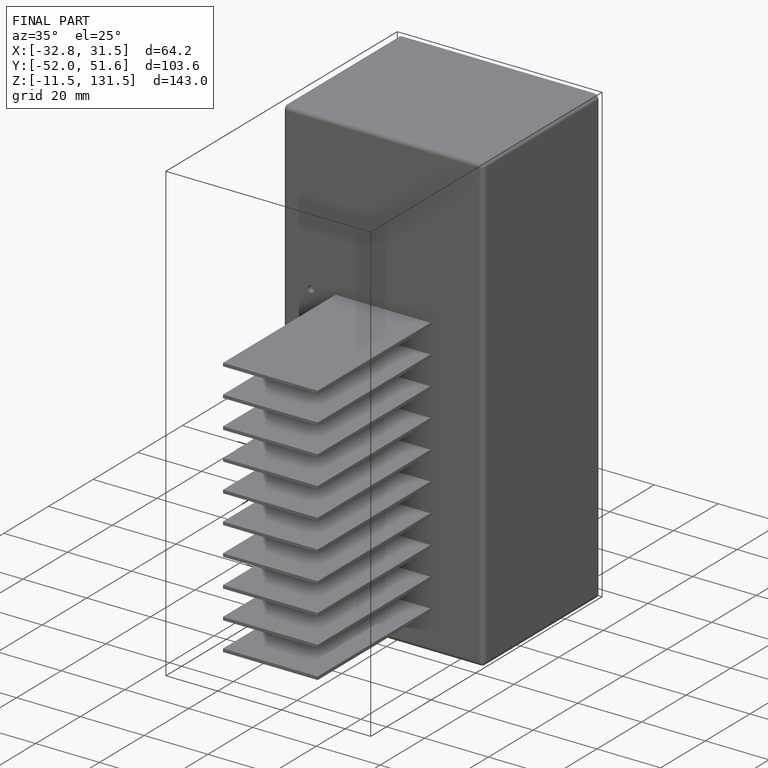
[diagram: finished part — iso view with bounding-box wireframe]
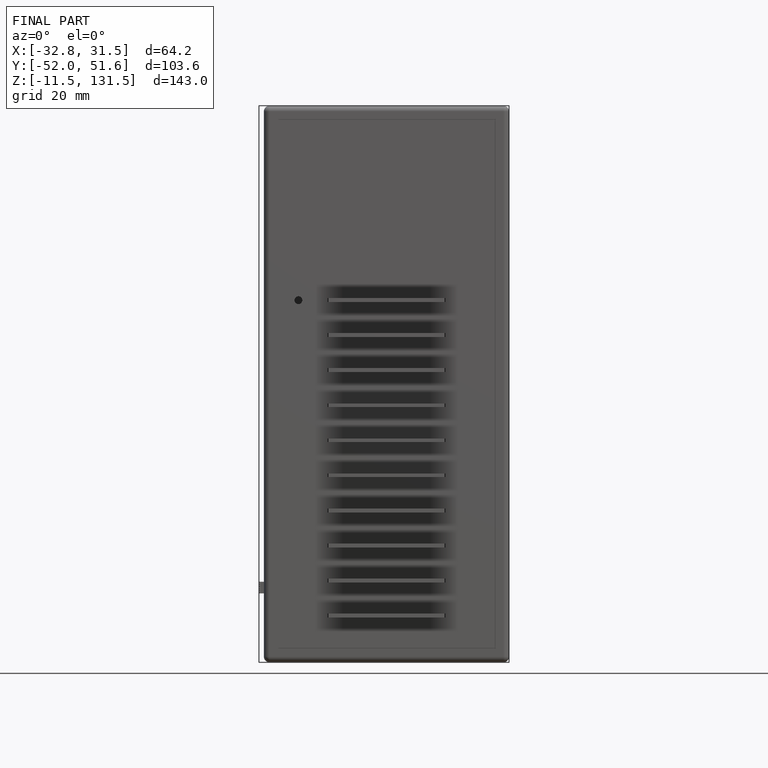
[diagram: finished part — front view with bounding-box wireframe]
